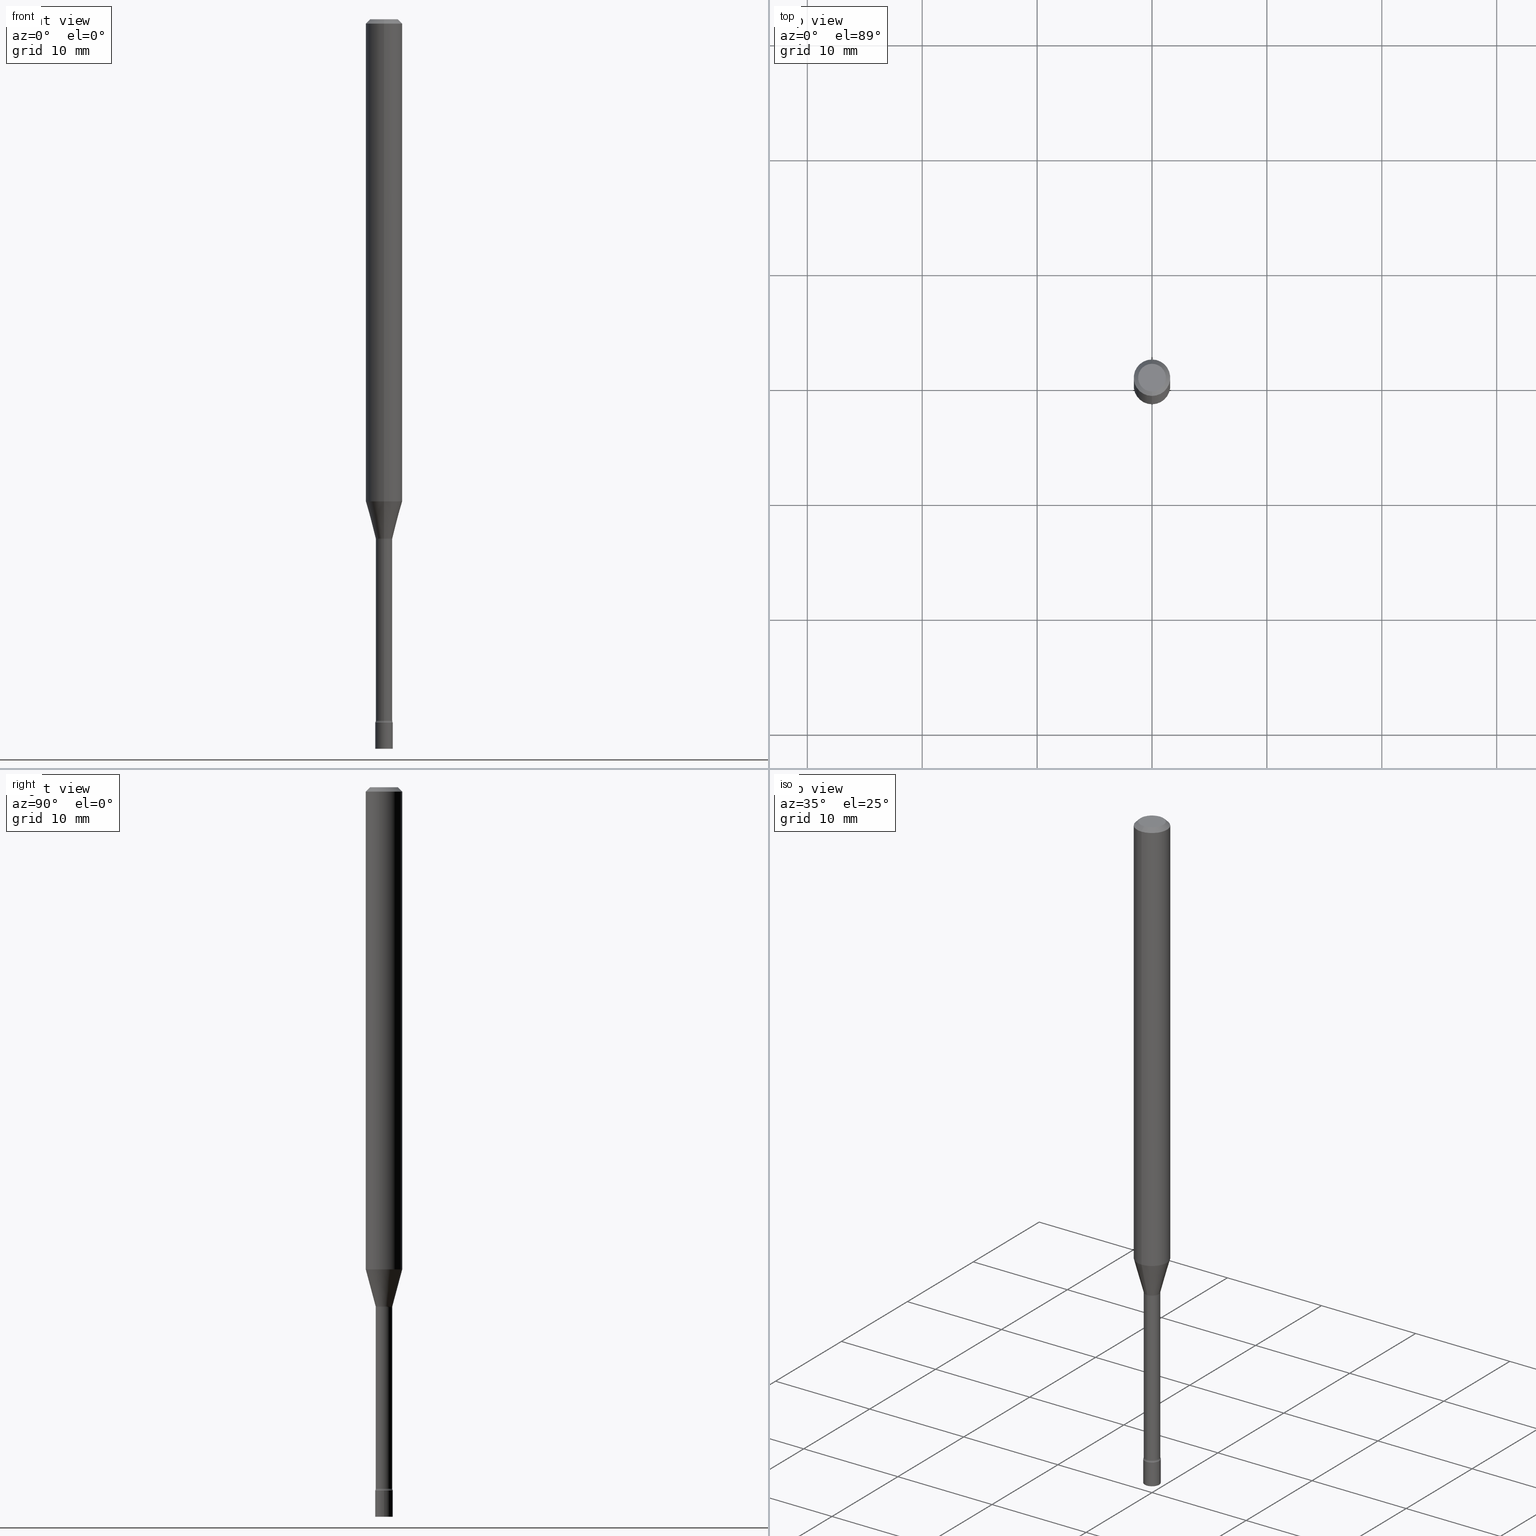
[diagram: canonical four-view strip — front | top / right | iso, engineering-drawing reading convention]
A machine part, canonical four-view strip (front | top / right | iso — engineering-drawing reading convention). The complete STEP part file that produces these views, byte-faithful:
ISO-10303-21;
HEADER;
FILE_DESCRIPTION (( 'STEP AP203' ),
    '1' );
FILE_NAME ('03601.STEP',
    '2024-03-08T22:02:42',
    ( '' ),
    ( '' ),
    'SwSTEP 2.0',
    'SolidWorks 2023',
    '' );
FILE_SCHEMA (( 'CONFIG_CONTROL_DESIGN' ));
ENDSEC;

DATA;
#1 = ORIENTED_EDGE ( 'NONE', *, *, #52, .T. ) ;
#2 = DIRECTION ( 'NONE',  ( 4.937700262164548042E-15, 0.7071067811865451302, -0.7071067811865499042 ) ) ;
#3 = DIRECTION ( 'NONE',  ( -2.445514255903286790E-29, 3.491416252259917408E-15, 1.000000000000000000 ) ) ;
#4 = ORIENTED_EDGE ( 'NONE', *, *, #431, .F. ) ;
#5 = DIRECTION ( 'NONE',  ( -2.445514255903286790E-29, 3.491416252259917408E-15, 1.000000000000000000 ) ) ;
#6 = EDGE_CURVE ( 'NONE', #175, #157, #355, .T. ) ;
#7 = ADVANCED_FACE ( 'NONE', ( #228 ), #27, .F. ) ;
#8 = AXIS2_PLACEMENT_3D ( 'NONE', #473, #239, #111 ) ;
#9 = CIRCLE ( 'NONE', #181, 0.01500000000000002720 ) ;
#10 = DIRECTION ( 'NONE',  ( -2.438088387897960049E-29, 3.491481338843145188E-15, 1.000000000000000000 ) ) ;
#11 = EDGE_LOOP ( 'NONE', ( #415, #82, #258, #126 ) ) ;
#12 = EDGE_LOOP ( 'NONE', ( #459, #340, #84, #229 ) ) ;
#13 = DIRECTION ( 'NONE',  ( -6.982962677686265922E-15, -1.000000000000000000, 4.370956789862821150E-15 ) ) ;
#14 = ORIENTED_EDGE ( 'NONE', *, *, #413, .F. ) ;
#15 = ADVANCED_FACE ( 'NONE', ( #306 ), #384, .T. ) ;
#16 = AXIS2_PLACEMENT_3D ( 'NONE', #234, #268, #307 ) ;
#17 = CIRCLE ( 'NONE', #421, 0.04749999999999999362 ) ;
#18 = DIRECTION ( 'NONE',  ( -2.445514255903286790E-29, 3.491416252259917408E-15, 1.000000000000000000 ) ) ;
#19 = DIRECTION ( 'NONE',  ( -2.445514255903286790E-29, 3.491416252259917408E-15, 1.000000000000000000 ) ) ;
#20 = ORIENTED_EDGE ( 'NONE', *, *, #431, .T. ) ;
#21 = ADVANCED_FACE ( 'NONE', ( #227 ), #276, .T. ) ;
#22 = FACE_OUTER_BOUND ( 'NONE', #465, .T. ) ;
#23 = ADVANCED_FACE ( 'NONE', ( #22 ), #508, .F. ) ;
#24 = DIRECTION ( 'NONE',  ( -6.982962677686265922E-15, -1.000000000000000000, 0.000000000000000000 ) ) ;
#25 = SHAPE_DEFINITION_REPRESENTATION ( #191, #349 ) ;
#26 = CARTESIAN_POINT ( 'NONE',  ( -0.02999999999999999889, -8.358423866131893065E-15, -2.410000000000000142 ) ) ;
#27 = TOROIDAL_SURFACE ( 'NONE', #85, 0.04320000000000000229, 0.01500000000000002720 ) ;
#28 = CIRCLE ( 'NONE', #100, 0.01499999999999990057 ) ;
#29 = CALENDAR_DATE ( 2024, 8, 3 ) ;
#30 = DIRECTION ( 'NONE',  ( 1.000000000000000000, -7.105427357601001070E-15, 4.926314711461324298E-29 ) ) ;
#31 = PERSON_AND_ORGANIZATION ( #252, #468 ) ;
#32 = CARTESIAN_POINT ( 'NONE',  ( 4.364351673553919652E-16, 0.06249999999999995143, -0.01500000000000024751 ) ) ;
#33 = CARTESIAN_POINT ( 'NONE',  ( 3.840629472727447874E-16, 0.04749999999999999362, -1.947592745229183872E-16 ) ) ;
#34 = EDGE_CURVE ( 'NONE', #435, #157, #502, .T. ) ;
#35 = ORIENTED_EDGE ( 'NONE', *, *, #189, .F. ) ;
#36 = COORDINATED_UNIVERSAL_TIME_OFFSET ( 5, 0, .BEHIND. ) ;
#37 = DIRECTION ( 'NONE',  ( 2.445514255903286790E-29, -3.491416252259917408E-15, -1.000000000000000000 ) ) ;
#38 = CIRCLE ( 'NONE', #466, 0.02820000000000016938 ) ;
#39 = AXIS2_PLACEMENT_3D ( 'NONE', #478, #443, #160 ) ;
#40 = CC_DESIGN_APPROVAL ( #248, ( #209 ) ) ;
#41 = FACE_OUTER_BOUND ( 'NONE', #128, .T. ) ;
#42 = ORIENTED_EDGE ( 'NONE', *, *, #230, .T. ) ;
#43 = CARTESIAN_POINT ( 'NONE',  ( 2.131628207280886208E-16, 0.02999999999999153691, -2.410000000000000142 ) ) ;
#44 = CARTESIAN_POINT ( 'NONE',  ( 0.000000000000000000, 0.000000000000000000, 0.000000000000000000 ) ) ;
#45 = ORIENTED_EDGE ( 'NONE', *, *, #274, .T. ) ;
#46 = CARTESIAN_POINT ( 'NONE',  ( 7.071694195096125605E-46, -1.009612926367956313E-31, -2.891700254057235572E-17 ) ) ;
#47 = ORIENTED_EDGE ( 'NONE', *, *, #204, .T. ) ;
#48 = CIRCLE ( 'NONE', #192, 0.06250000000000000000 ) ;
#49 = AXIS2_PLACEMENT_3D ( 'NONE', #50, #221, #125 ) ;
#50 = CARTESIAN_POINT ( 'NONE',  ( -3.016639876759883864E-16, -0.04320000000000846080, -2.402875394747777893 ) ) ;
#51 = ORIENTED_EDGE ( 'NONE', *, *, #297, .T. ) ;
#52 = EDGE_CURVE ( 'NONE', #414, #261, #185, .T. ) ;
#53 = VERTEX_POINT ( 'NONE', #140 ) ;
#54 = DIRECTION ( 'NONE',  ( -6.982962677686265922E-15, -1.000000000000000000, 4.370956789862821150E-15 ) ) ;
#55 = ORIENTED_EDGE ( 'NONE', *, *, #351, .F. ) ;
#56 = AXIS2_PLACEMENT_3D ( 'NONE', #310, #183, #24 ) ;
#57 = PRODUCT_DEFINITION ( 'UNKNOWN', '', #426, #464 ) ;
#58 = CARTESIAN_POINT ( 'NONE',  ( 5.893689356726921204E-29, -8.414313167946401273E-15, -2.410000000000000142 ) ) ;
#59 = EDGE_CURVE ( 'NONE', #414, #378, #188, .T. ) ;
#60 = VERTEX_POINT ( 'NONE', #427 ) ;
#61 = DIRECTION ( 'NONE',  ( -6.982962677686265922E-15, -1.000000000000000000, 3.491416252259917408E-15 ) ) ;
#62 = CC_DESIGN_DATE_AND_TIME_ASSIGNMENT ( #245, #148, ( #57 ) ) ;
#63 = VECTOR ( 'NONE', #457, 39.37007874015748143 ) ;
#64 = CARTESIAN_POINT ( 'NONE',  ( -0.02999999999999999889, 2.131628207280300479E-16, -1.475680527076471707E-30 ) ) ;
#65 = DIRECTION ( 'NONE',  ( 1.000000000000000000, -6.982962677686268288E-15, 0.000000000000000000 ) ) ;
#66 = CALENDAR_DATE ( 2024, 8, 3 ) ;
#67 = CARTESIAN_POINT ( 'NONE',  ( -2.004886277601557316E-16, -0.02871111260567018111, -1.778092501787273294 ) ) ;
#68 = LINE ( 'NONE', #254, #314 ) ;
#69 = CC_DESIGN_PERSON_AND_ORGANIZATION_ASSIGNMENT ( #197, #360, ( #426 ) ) ;
#70 = DIRECTION ( 'NONE',  ( -6.982962677686265922E-15, -1.000000000000000000, 0.000000000000000000 ) ) ;
#71 = DIRECTION ( 'NONE',  ( 6.982962677686265922E-15, 1.000000000000000000, -3.491416252259917408E-15 ) ) ;
#72 = CARTESIAN_POINT ( 'NONE',  ( 4.348350561435517217E-29, -6.208061058761581417E-15, -1.778092501787273294 ) ) ;
#73 = ADVANCED_FACE ( 'NONE', ( #380 ), #425, .T. ) ;
#74 = CARTESIAN_POINT ( 'NONE',  ( -2.094888803305286593E-16, -0.03000000000000836373, -2.410000000000000142 ) ) ;
#75 = CARTESIAN_POINT ( 'NONE',  ( 3.069544618484067825E-16, 0.04319999999999377810, -1.781974787463811438 ) ) ;
#76 = ORIENTED_EDGE ( 'NONE', *, *, #309, .F. ) ;
#77 = ORIENTED_EDGE ( 'NONE', *, *, #159, .F. ) ;
#78 = DIRECTION ( 'NONE',  ( -6.982962677686265922E-15, -1.000000000000000000, 3.483106191921935554E-15 ) ) ;
#79 = AXIS2_PLACEMENT_3D ( 'NONE', #90, #142, #424 ) ;
#80 = DIRECTION ( 'NONE',  ( -2.445514255903286790E-29, 3.491416252259917408E-15, 1.000000000000000000 ) ) ;
#81 = CYLINDRICAL_SURFACE ( 'NONE', #436, 0.02820000000000007917 ) ;
#82 = ORIENTED_EDGE ( 'NONE', *, *, #195, .F. ) ;
#83 = FACE_OUTER_BOUND ( 'NONE', #343, .T. ) ;
#84 = ORIENTED_EDGE ( 'NONE', *, *, #159, .T. ) ;
#85 = AXIS2_PLACEMENT_3D ( 'NONE', #235, #182, #187 ) ;
#86 = AXIS2_PLACEMENT_3D ( 'NONE', #403, #441, #283 ) ;
#87 = CARTESIAN_POINT ( 'NONE',  ( 4.357844746402980234E-29, -6.221615734068562240E-15, -1.781974787463811216 ) ) ;
#88 = ORIENTED_EDGE ( 'NONE', *, *, #184, .F. ) ;
#89 = ORIENTED_EDGE ( 'NONE', *, *, #34, .T. ) ;
#90 = CARTESIAN_POINT ( 'NONE',  ( 0.000000000000000000, 0.000000000000000000, 0.000000000000000000 ) ) ;
#91 = AXIS2_PLACEMENT_3D ( 'NONE', #251, #315, #396 ) ;
#92 = CIRCLE ( 'NONE', #219, 0.02871111260566397427 ) ;
#93 = ORIENTED_EDGE ( 'NONE', *, *, #280, .F. ) ;
#94 = ORIENTED_EDGE ( 'NONE', *, *, #231, .T. ) ;
#95 = DIRECTION ( 'NONE',  ( -2.445468806185136597E-29, 3.491481338843145583E-15, 1.000000000000000000 ) ) ;
#96 = EDGE_CURVE ( 'NONE', #290, #60, #38, .T. ) ;
#97 = AXIS2_PLACEMENT_3D ( 'NONE', #166, #80, #54 ) ;
#98 = AXIS2_PLACEMENT_3D ( 'NONE', #317, #241, #483 ) ;
#99 = ORIENTED_EDGE ( 'NONE', *, *, #151, .T. ) ;
#100 = AXIS2_PLACEMENT_3D ( 'NONE', #299, #216, #257 ) ;
#101 = COORDINATED_UNIVERSAL_TIME_OFFSET ( 5, 0, .BEHIND. ) ;
#102 = CARTESIAN_POINT ( 'NONE',  ( -4.364351673553513882E-16, -0.06250000000000580092, -1.651990657300387744 ) ) ;
#103 = PERSON_AND_ORGANIZATION ( #252, #468 ) ;
#104 = DIRECTION ( 'NONE',  ( -2.445514255903286790E-29, 3.491416252259917408E-15, 1.000000000000000000 ) ) ;
#105 = DIRECTION ( 'NONE',  ( -2.445514255903287071E-29, 3.491416252259917408E-15, 1.000000000000000000 ) ) ;
#106 = DATE_AND_TIME ( #325, #446 ) ;
#107 =( NAMED_UNIT ( * ) PLANE_ANGLE_UNIT ( ) SI_UNIT ( $, .RADIAN. ) );
#108 = EDGE_CURVE ( 'NONE', #493, #512, #375, .T. ) ;
#109 = EDGE_CURVE ( 'NONE', #53, #173, #422, .T. ) ;
#110 = PERSON_AND_ORGANIZATION_ROLE ( 'design_owner' ) ;
#111 = DIRECTION ( 'NONE',  ( 1.000000000000000000, -6.982962677686268288E-15, 0.000000000000000000 ) ) ;
#112 = CIRCLE ( 'NONE', #342, 0.02999999999999999889 ) ;
#113 = LOCAL_TIME ( 17, 2, 42.00000000000000000, #285 ) ;
#114 = ORIENTED_EDGE ( 'NONE', *, *, #503, .F. ) ;
#115 = SECURITY_CLASSIFICATION_LEVEL ( 'unclassified' ) ;
#116 = CARTESIAN_POINT ( 'NONE',  ( 0.02999999999999999889, -8.623958906942569995E-15, -2.410000000000000142 ) ) ;
#117 = ORIENTED_EDGE ( 'NONE', *, *, #189, .T. ) ;
#118 = APPROVAL_DATE_TIME ( #440, #485 ) ;
#119 = PLANE ( 'NONE',  #334 ) ;
#120 = LINE ( 'NONE', #67, #242 ) ;
#121 = DIRECTION ( 'NONE',  ( -6.982962677686265922E-15, -1.000000000000000000, 0.000000000000000000 ) ) ;
#122 = CARTESIAN_POINT ( 'NONE',  ( 4.039966703047140038E-29, -5.767787029480118116E-15, -1.651990657300387966 ) ) ;
#123 = VECTOR ( 'NONE', #2, 39.37007874015748143 ) ;
#124 = ORIENTED_EDGE ( 'NONE', *, *, #274, .F. ) ;
#125 = DIRECTION ( 'NONE',  ( -6.982962677686265922E-15, -1.000000000000000000, 0.000000000000000000 ) ) ;
#126 = ORIENTED_EDGE ( 'NONE', *, *, #330, .T. ) ;
#127 = CARTESIAN_POINT ( 'NONE',  ( 3.668271383854937122E-31, -5.237124378389886195E-17, -0.01500000000000003067 ) ) ;
#128 = EDGE_LOOP ( 'NONE', ( #499, #267, #99, #114 ) ) ;
#129 = PLANE ( 'NONE',  #288 ) ;
#130 = EDGE_LOOP ( 'NONE', ( #331, #373 ) ) ;
#131 = EDGE_LOOP ( 'NONE', ( #498, #266, #94, #93 ) ) ;
#132 = AXIS2_PLACEMENT_3D ( 'NONE', #350, #134, #352 ) ;
#133 = APPROVAL_PERSON_ORGANIZATION ( #388, #485, #240 ) ;
#134 = DIRECTION ( 'NONE',  ( -2.445468806185136597E-29, 3.491481338843145583E-15, 1.000000000000000000 ) ) ;
#135 = EDGE_CURVE ( 'NONE', #179, #311, #419, .T. ) ;
#136 = ADVANCED_FACE ( 'NONE', ( #469 ), #369, .F. ) ;
#137 = CARTESIAN_POINT ( 'NONE',  ( 5.876156823005488124E-29, -8.389594600327224115E-15, -2.402875394747777893 ) ) ;
#138 = PRODUCT ( '03601', '03601', '', ( #211 ) ) ;
#139 = AXIS2_PLACEMENT_3D ( 'NONE', #127, #492, #178 ) ;
#140 = CARTESIAN_POINT ( 'NONE',  ( 3.240469674127971596E-16, 0.02871111260565776743, -1.778092501787273294 ) ) ;
#141 = ORIENTED_EDGE ( 'NONE', *, *, #177, .T. ) ;
#142 = DIRECTION ( 'NONE',  ( -2.445514255903286790E-29, 3.491416252259917408E-15, 1.000000000000000000 ) ) ;
#143 = AXIS2_PLACEMENT_3D ( 'NONE', #423, #95, #65 ) ;
#144 = LOCAL_TIME ( 17, 2, 42.00000000000000000, #101 ) ;
#145 = CYLINDRICAL_SURFACE ( 'NONE', #170, 0.02820000000000007917 ) ;
#146 = CC_DESIGN_PERSON_AND_ORGANIZATION_ASSIGNMENT ( #205, #357, ( #426 ) ) ;
#147 = MANIFOLD_SOLID_BREP ( 'Body-Move/Copy2[1]', #308 ) ;
#148 = DATE_TIME_ROLE ( 'creation_date' ) ;
#149 = CARTESIAN_POINT ( 'NONE',  ( 4.357763756151139053E-29, -6.221731716718877342E-15, -1.781974787463811216 ) ) ;
#150 = CARTESIAN_POINT ( 'NONE',  ( 2.040047249754912493E-16, 0.02871111260565776743, -1.778092501787273294 ) ) ;
#151 = EDGE_CURVE ( 'NONE', #378, #222, #48, .T. ) ;
#152 = EDGE_CURVE ( 'NONE', #512, #493, #487, .T. ) ;
#153 = EDGE_LOOP ( 'NONE', ( #223, #47, #20, #376 ) ) ;
#154 = APPROVAL_STATUS ( 'not_yet_approved' ) ;
#155 = DIRECTION ( 'NONE',  ( -6.982962677686266711E-15, -1.000000000000000000, 3.491416252259917408E-15 ) ) ;
#156 = DIRECTION ( 'NONE',  ( -2.445514255903286790E-29, 3.491416252259917408E-15, 1.000000000000000000 ) ) ;
#157 = VERTEX_POINT ( 'NONE', #26 ) ;
#158 = COORDINATED_UNIVERSAL_TIME_OFFSET ( 5, 0, .BEHIND. ) ;
#159 = EDGE_CURVE ( 'NONE', #60, #311, #324, .T. ) ;
#160 = DIRECTION ( 'NONE',  ( -6.982962677686265922E-15, -1.000000000000000000, 3.491416252259917408E-15 ) ) ;
#161 = CIRCLE ( 'NONE', #97, 0.06250000000000000000 ) ;
#162 = PERSON_AND_ORGANIZATION_ROLE ( 'classification_officer' ) ;
#163 = DIRECTION ( 'NONE',  ( -6.982962677686265922E-15, -1.000000000000000000, 0.000000000000000000 ) ) ;
#164 = DIRECTION ( 'NONE',  ( -2.445514255903286790E-29, 3.491416252259917408E-15, 1.000000000000000000 ) ) ;
#165 = EDGE_LOOP ( 'NONE', ( #167, #448, #339, #77 ) ) ;
#166 = CARTESIAN_POINT ( 'NONE',  ( 4.039966703047140038E-29, -5.767787029480118116E-15, -1.651990657300387966 ) ) ;
#167 = ORIENTED_EDGE ( 'NONE', *, *, #413, .T. ) ;
#168 = CYLINDRICAL_SURFACE ( 'NONE', #401, 0.06250000000000000000 ) ;
#169 = ORIENTED_EDGE ( 'NONE', *, *, #379, .F. ) ;
#170 = AXIS2_PLACEMENT_3D ( 'NONE', #289, #438, #393 ) ;
#171 = APPROVAL ( #154, 'UNSPECIFIED' ) ;
#172 = AXIS2_PLACEMENT_3D ( 'NONE', #87, #260, #489 ) ;
#173 = VERTEX_POINT ( 'NONE', #194 ) ;
#174 = FACE_OUTER_BOUND ( 'NONE', #130, .T. ) ;
#175 = VERTEX_POINT ( 'NONE', #116 ) ;
#176 = ORIENTED_EDGE ( 'NONE', *, *, #280, .T. ) ;
#177 = EDGE_CURVE ( 'NONE', #305, #435, #112, .T. ) ;
#178 = DIRECTION ( 'NONE',  ( 6.982962677686265922E-15, 1.000000000000000000, -3.483106191921935554E-15 ) ) ;
#179 = VERTEX_POINT ( 'NONE', #470 ) ;
#180 = AXIS2_PLACEMENT_3D ( 'NONE', #58, #18, #346 ) ;
#181 = AXIS2_PLACEMENT_3D ( 'NONE', #363, #511, #437 ) ;
#182 = DIRECTION ( 'NONE',  ( -2.445514255903286790E-29, 3.491416252259917408E-15, 1.000000000000000000 ) ) ;
#183 = DIRECTION ( 'NONE',  ( -2.445514255903286790E-29, 3.491416252259917408E-15, 1.000000000000000000 ) ) ;
#184 = EDGE_CURVE ( 'NONE', #222, #378, #332, .T. ) ;
#185 = CIRCLE ( 'NONE', #16, 0.04749999999999999362 ) ;
#186 = AXIS2_PLACEMENT_3D ( 'NONE', #445, #250, #163 ) ;
#187 = DIRECTION ( 'NONE',  ( -6.982962677686266711E-15, -1.000000000000000000, 3.491416252259917408E-15 ) ) ;
#188 = LINE ( 'NONE', #385, #444 ) ;
#189 = EDGE_CURVE ( 'NONE', #173, #222, #244, .T. ) ;
#190 = CARTESIAN_POINT ( 'NONE',  ( 3.668271383854937122E-31, -5.237124378389886195E-17, -0.01500000000000003067 ) ) ;
#191 = PRODUCT_DEFINITION_SHAPE ( 'NONE', 'NONE',  #57 ) ;
#192 = AXIS2_PLACEMENT_3D ( 'NONE', #247, #282, #78 ) ;
#193 = TOROIDAL_SURFACE ( 'NONE', #243, 0.04320000000000000229, 0.01500000000000002720 ) ;
#194 = CARTESIAN_POINT ( 'NONE',  ( 4.440892098501027495E-16, 0.06249999999999419215, -1.651990657300388188 ) ) ;
#195 = EDGE_CURVE ( 'NONE', #215, #53, #409, .T. ) ;
#196 = ORIENTED_EDGE ( 'NONE', *, *, #151, .F. ) ;
#197 = PERSON_AND_ORGANIZATION ( #252, #468 ) ;
#198 = FACE_OUTER_BOUND ( 'NONE', #463, .T. ) ;
#199 = CARTESIAN_POINT ( 'NONE',  ( 5.893689356726921204E-29, -8.414313167946401273E-15, -2.410000000000000142 ) ) ;
#200 = UNCERTAINTY_MEASURE_WITH_UNIT (LENGTH_MEASURE( 1.000000000000000082E-05 ), #292, 'distance_accuracy_value', 'NONE');
#201 = PRODUCT_RELATED_PRODUCT_CATEGORY ( 'detail', '', ( #138 ) ) ;
#202 = APPROVAL_ROLE ( '' ) ;
#203 = DIRECTION ( 'NONE',  ( -2.445514255903287071E-29, 3.491416252259917408E-15, 1.000000000000000000 ) ) ;
#204 = EDGE_CURVE ( 'NONE', #435, #305, #456, .T. ) ;
#205 = PERSON_AND_ORGANIZATION ( #252, #468 ) ;
#206 = DIRECTION ( 'NONE',  ( -2.445514255903286790E-29, 3.491416252259917408E-15, 1.000000000000000000 ) ) ;
#207 = DIRECTION ( 'NONE',  ( -6.982962677686265133E-15, -1.000000000000000000, 0.000000000000000000 ) ) ;
#208 = AXIS2_PLACEMENT_3D ( 'NONE', #44, #333, #447 ) ;
#209 = SECURITY_CLASSIFICATION ( '', '', #115 ) ;
#210 = DIMENSIONAL_EXPONENTS ( 1.000000000000000000, 0.000000000000000000, 0.000000000000000000, 0.000000000000000000, 0.000000000000000000, 0.000000000000000000, 0.000000000000000000 ) ;
#211 = MECHANICAL_CONTEXT ( 'NONE', #347, 'mechanical' ) ;
#212 = FACE_OUTER_BOUND ( 'NONE', #12, .T. ) ;
#213 = LINE ( 'NONE', #32, #123 ) ;
#214 = CARTESIAN_POINT ( 'NONE',  ( -1.969195475107090191E-16, -0.02820000000000621315, -1.781974787463811216 ) ) ;
#215 = VERTEX_POINT ( 'NONE', #390 ) ;
#216 = DIRECTION ( 'NONE',  ( 1.000000000000000000, -7.105427357601001070E-15, 4.926314711461324298E-29 ) ) ;
#217 = EDGE_CURVE ( 'NONE', #290, #179, #402, .T. ) ;
#218 = VECTOR ( 'NONE', #105, 39.37007874015748143 ) ;
#219 = AXIS2_PLACEMENT_3D ( 'NONE', #361, #472, #392 ) ;
#220 = ORIENTED_EDGE ( 'NONE', *, *, #96, .F. ) ;
#221 = DIRECTION ( 'NONE',  ( -1.000000000000000000, 6.982962677686265922E-15, -4.883557194083112901E-29 ) ) ;
#222 = VERTEX_POINT ( 'NONE', #442 ) ;
#223 = ORIENTED_EDGE ( 'NONE', *, *, #34, .F. ) ;
#224 = CARTESIAN_POINT ( 'NONE',  ( -4.364351673553916201E-16, -0.06250000000000000000, 2.182135157662448380E-16 ) ) ;
#225 = ORIENTED_EDGE ( 'NONE', *, *, #177, .F. ) ;
#226 = ORIENTED_EDGE ( 'NONE', *, *, #503, .T. ) ;
#227 = FACE_OUTER_BOUND ( 'NONE', #500, .T. ) ;
#228 = FACE_OUTER_BOUND ( 'NONE', #11, .T. ) ;
#229 = ORIENTED_EDGE ( 'NONE', *, *, #135, .F. ) ;
#230 = EDGE_CURVE ( 'NONE', #53, #179, #474, .T. ) ;
#231 = EDGE_CURVE ( 'NONE', #215, #253, #120, .T. ) ;
#232 = AXIS2_PLACEMENT_3D ( 'NONE', #429, #356, #432 ) ;
#233 = CC_DESIGN_APPROVAL ( #171, ( #57 ) ) ;
#234 = CARTESIAN_POINT ( 'NONE',  ( 7.071694195096125605E-46, -1.009612926367956313E-31, -2.891700254057235572E-17 ) ) ;
#235 = CARTESIAN_POINT ( 'NONE',  ( 4.357763756151139053E-29, -6.221731716718877342E-15, -1.781974787463811216 ) ) ;
#236 = APPROVAL_DATE_TIME ( #106, #248 ) ;
#237 = ADVANCED_FACE ( 'NONE', ( #293 ), #323, .T. ) ;
#238 = EDGE_CURVE ( 'NONE', #157, #175, #255, .T. ) ;
#239 = DIRECTION ( 'NONE',  ( -2.445468806185136597E-29, 3.491481338843145583E-15, 1.000000000000000000 ) ) ;
#240 = APPROVAL_ROLE ( '' ) ;
#241 = DIRECTION ( 'NONE',  ( 0.000000000000000000, 0.000000000000000000, 1.000000000000000000 ) ) ;
#242 = VECTOR ( 'NONE', #386, 39.37007874015748854 ) ;
#243 = AXIS2_PLACEMENT_3D ( 'NONE', #149, #104, #155 ) ;
#244 = LINE ( 'NONE', #256, #218 ) ;
#245 = DATE_AND_TIME ( #510, #475 ) ;
#246 = DIRECTION ( 'NONE',  ( -2.445468806185136877E-29, 3.491481338843145188E-15, 1.000000000000000000 ) ) ;
#247 = CARTESIAN_POINT ( 'NONE',  ( 3.668271383854937122E-31, -5.237124378389886195E-17, -0.01500000000000003067 ) ) ;
#248 = APPROVAL ( #316, 'UNSPECIFIED' ) ;
#249 = APPLICATION_PROTOCOL_DEFINITION ( 'international standard', 'config_control_design', 1994, #364 ) ;
#250 = DIRECTION ( 'NONE',  ( -2.445514255903286790E-29, 3.491416252259917408E-15, 1.000000000000000000 ) ) ;
#251 = CARTESIAN_POINT ( 'NONE',  ( 3.668271383854937122E-31, -5.237124378389886195E-17, -0.01500000000000003067 ) ) ;
#252 = PERSON ( 'UNSPECIFIED', 'UNSPECIFIED', 'UNSPECIFIED', ('UNSPECIFIED'), ('UNSPECIFIED'), ('UNSPECIFIED') ) ;
#253 = VERTEX_POINT ( 'NONE', #102 ) ;
#254 = CARTESIAN_POINT ( 'NONE',  ( 0.02999999999999999889, -2.094888803305880210E-16, 1.462853032738780878E-30 ) ) ;
#255 = CIRCLE ( 'NONE', #8, 0.02999999999999999889 ) ;
#256 = CARTESIAN_POINT ( 'NONE',  ( 4.440892098500625669E-16, 0.06250000000000000000, -2.182135157662448380E-16 ) ) ;
#257 = DIRECTION ( 'NONE',  ( 7.105427357601001859E-15, 1.000000000000000000, 0.000000000000000000 ) ) ;
#258 = ORIENTED_EDGE ( 'NONE', *, *, #454, .T. ) ;
#259 = ADVANCED_FACE ( 'NONE', ( #354 ), #145, .T. ) ;
#260 = DIRECTION ( 'NONE',  ( -2.445514255903286790E-29, 3.491416252259917408E-15, 1.000000000000000000 ) ) ;
#261 = VERTEX_POINT ( 'NONE', #33 ) ;
#262 = CARTESIAN_POINT ( 'NONE',  ( 0.000000000000000000, 0.000000000000000000, 0.000000000000000000 ) ) ;
#263 = AXIS2_PLACEMENT_3D ( 'NONE', #75, #30, #320 ) ;
#264 = APPROVAL_PERSON_ORGANIZATION ( #103, #248, #202 ) ;
#265 = DIRECTION ( 'NONE',  ( 1.000000000000000000, -6.982962677686265922E-15, 4.876176775795935793E-29 ) ) ;
#266 = ORIENTED_EDGE ( 'NONE', *, *, #490, .T. ) ;
#267 = ORIENTED_EDGE ( 'NONE', *, *, #59, .T. ) ;
#268 = DIRECTION ( 'NONE',  ( -2.445514255903286790E-29, 3.491416252259917408E-15, 1.000000000000000000 ) ) ;
#269 = AXIS2_PLACEMENT_3D ( 'NONE', #199, #365, #70 ) ;
#270 = CONICAL_SURFACE ( 'NONE', #139, 0.06250000000000000000, 0.7853981633974483900 ) ;
#271 = CC_DESIGN_PERSON_AND_ORGANIZATION_ASSIGNMENT ( #31, #281, ( #57 ) ) ;
#272 = EDGE_LOOP ( 'NONE', ( #381, #408 ) ) ;
#273 = ADVANCED_FACE ( 'NONE', ( #362 ), #298, .T. ) ;
#274 = EDGE_CURVE ( 'NONE', #253, #173, #161, .T. ) ;
#275 = ORIENTED_EDGE ( 'NONE', *, *, #297, .F. ) ;
#276 = CYLINDRICAL_SURFACE ( 'NONE', #79, 0.06250000000000000000 ) ;
#277 = VECTOR ( 'NONE', #284, 39.37007874015748143 ) ;
#278 = CIRCLE ( 'NONE', #49, 0.01499999999999990057 ) ;
#279 = ORIENTED_EDGE ( 'NONE', *, *, #59, .F. ) ;
#280 = EDGE_CURVE ( 'NONE', #173, #253, #518, .T. ) ;
#281 = PERSON_AND_ORGANIZATION_ROLE ( 'creator' ) ;
#282 = DIRECTION ( 'NONE',  ( -2.445514255903286790E-29, 3.491416252259917408E-15, 1.000000000000000000 ) ) ;
#283 = DIRECTION ( 'NONE',  ( -6.982962677686265922E-15, -1.000000000000000000, 3.491416252259917408E-15 ) ) ;
#284 = DIRECTION ( 'NONE',  ( -2.445514255903287071E-29, 3.491416252259917408E-15, 1.000000000000000000 ) ) ;
#285 = COORDINATED_UNIVERSAL_TIME_OFFSET ( 5, 0, .BEHIND. ) ;
#286 = DIRECTION ( 'NONE',  ( 2.445514255903286230E-29, -3.491416252259917408E-15, -1.000000000000000000 ) ) ;
#287 = VECTOR ( 'NONE', #461, 39.37007874015748143 ) ;
#288 = AXIS2_PLACEMENT_3D ( 'NONE', #416, #329, #484 ) ;
#289 = CARTESIAN_POINT ( 'NONE',  ( 0.000000000000000000, 0.000000000000000000, 0.000000000000000000 ) ) ;
#290 = VERTEX_POINT ( 'NONE', #337 ) ;
#291 = CARTESIAN_POINT ( 'NONE',  ( 2.003730514843487903E-16, 0.02820000000000007917, -9.845793831372994551E-17 ) ) ;
#292 =( CONVERSION_BASED_UNIT ( 'INCH', #477 ) LENGTH_UNIT ( ) NAMED_UNIT ( #210 ) );
#293 = FACE_OUTER_BOUND ( 'NONE', #405, .T. ) ;
#294 =( LENGTH_UNIT ( ) NAMED_UNIT ( * ) SI_UNIT ( $, .METRE. ) );
#295 = FACE_OUTER_BOUND ( 'NONE', #439, .T. ) ;
#296 =( GEOMETRIC_REPRESENTATION_CONTEXT ( 3 ) GLOBAL_UNCERTAINTY_ASSIGNED_CONTEXT ( ( #200 ) ) GLOBAL_UNIT_ASSIGNED_CONTEXT ( ( #292, #107, #430 ) ) REPRESENTATION_CONTEXT ( 'NONE', 'WORKASPACE' ) );
#297 = EDGE_CURVE ( 'NONE', #253, #378, #455, .T. ) ;
#298 = CYLINDRICAL_SURFACE ( 'NONE', #208, 0.02999999999999999889 ) ;
#299 = CARTESIAN_POINT ( 'NONE',  ( 3.069544618484224611E-16, 0.04319999999999167561, -2.402875394747778337 ) ) ;
#300 = PERSON_AND_ORGANIZATION ( #252, #468 ) ;
#301 = CARTESIAN_POINT ( 'NONE',  ( 0.02999999999999999889, -8.938192227438451682E-15, -2.500000000000000000 ) ) ;
#302 = ADVANCED_FACE ( 'NONE', ( #41 ), #270, .T. ) ;
#303 = ORIENTED_EDGE ( 'NONE', *, *, #184, .T. ) ;
#304 = AXIS2_PLACEMENT_3D ( 'NONE', #122, #3, #13 ) ;
#305 = VERTEX_POINT ( 'NONE', #301 ) ;
#306 = FACE_OUTER_BOUND ( 'NONE', #368, .T. ) ;
#307 = DIRECTION ( 'NONE',  ( -6.982962677686266711E-15, -1.000000000000000000, 3.491416252259917408E-15 ) ) ;
#308 = CLOSED_SHELL ( 'NONE', ( #15, #348, #273, #389 ) ) ;
#309 = EDGE_CURVE ( 'NONE', #290, #493, #28, .T. ) ;
#310 = CARTESIAN_POINT ( 'NONE',  ( 4.348350561435517217E-29, -6.208061058761581417E-15, -1.778092501787273294 ) ) ;
#311 = VERTEX_POINT ( 'NONE', #214 ) ;
#312 = DIRECTION ( 'NONE',  ( -4.851104656540964275E-15, -0.7071067811865500152, -0.7071067811865450192 ) ) ;
#313 = AXIS2_PLACEMENT_3D ( 'NONE', #137, #19, #61 ) ;
#314 = VECTOR ( 'NONE', #246, 39.37007874015748143 ) ;
#315 = DIRECTION ( 'NONE',  ( -2.445514255903286790E-29, 3.491416252259917408E-15, 1.000000000000000000 ) ) ;
#316 = APPROVAL_STATUS ( 'not_yet_approved' ) ;
#317 = CARTESIAN_POINT ( 'NONE',  ( 0.000000000000000000, 0.000000000000000000, 0.000000000000000000 ) ) ;
#318 = CARTESIAN_POINT ( 'NONE',  ( 4.357844746402980234E-29, -6.221615734068562240E-15, -1.781974787463811216 ) ) ;
#319 = CALENDAR_DATE ( 2024, 8, 3 ) ;
#320 = DIRECTION ( 'NONE',  ( 7.105427357601001859E-15, 1.000000000000000000, 0.000000000000000000 ) ) ;
#321 = COORDINATED_UNIVERSAL_TIME_OFFSET ( 5, 0, .BEHIND. ) ;
#322 = PLANE ( 'NONE',  #86 ) ;
#323 = CONICAL_SURFACE ( 'NONE', #382, 0.06250000000000000000, 0.7853981633974483900 ) ;
#324 = LINE ( 'NONE', #514, #277 ) ;
#325 = CALENDAR_DATE ( 2024, 8, 3 ) ;
#326 = CARTESIAN_POINT ( 'NONE',  ( -3.773273898774340269E-16, -0.04749999999999999362, 1.369252694417737251E-16 ) ) ;
#327 = CARTESIAN_POINT ( 'NONE',  ( 6.113672015462842613E-29, -8.728703347107864943E-15, -2.500000000000000000 ) ) ;
#328 = CARTESIAN_POINT ( 'NONE',  ( 5.876266033014929220E-29, -8.389438205377856911E-15, -2.402875394747777893 ) ) ;
#329 = DIRECTION ( 'NONE',  ( 2.438088387897960049E-29, -3.491481338843145188E-15, -1.000000000000000000 ) ) ;
#330 = EDGE_CURVE ( 'NONE', #311, #179, #371, .T. ) ;
#331 = ORIENTED_EDGE ( 'NONE', *, *, #6, .T. ) ;
#332 = CIRCLE ( 'NONE', #91, 0.06250000000000000000 ) ;
#333 = DIRECTION ( 'NONE',  ( -2.445468806185136597E-29, 3.491481338843145583E-15, 1.000000000000000000 ) ) ;
#334 = AXIS2_PLACEMENT_3D ( 'NONE', #358, #286, #71 ) ;
#335 = ORIENTED_EDGE ( 'NONE', *, *, #108, .T. ) ;
#336 = MANIFOLD_SOLID_BREP ( 'Body-Move/Copy2[2]', #501 ) ;
#337 = CARTESIAN_POINT ( 'NONE',  ( 2.067679361062483248E-16, 0.02819999999999178025, -2.402875394747777893 ) ) ;
#338 = DIRECTION ( 'NONE',  ( -6.982962677686265922E-15, -1.000000000000000000, 3.491416252259917408E-15 ) ) ;
#339 = ORIENTED_EDGE ( 'NONE', *, *, #330, .F. ) ;
#340 = ORIENTED_EDGE ( 'NONE', *, *, #96, .T. ) ;
#341 = VECTOR ( 'NONE', #517, 39.37007874015748854 ) ;
#342 = AXIS2_PLACEMENT_3D ( 'NONE', #327, #481, #520 ) ;
#343 = EDGE_LOOP ( 'NONE', ( #45, #117, #196, #275 ) ) ;
#344 = DIRECTION ( 'NONE',  ( -2.445514255903286790E-29, 3.491416252259917408E-15, 1.000000000000000000 ) ) ;
#345 = ADVANCED_FACE ( 'NONE', ( #83 ), #168, .T. ) ;
#346 = DIRECTION ( 'NONE',  ( -6.982962677686265922E-15, -1.000000000000000000, 0.000000000000000000 ) ) ;
#347 = APPLICATION_CONTEXT ( 'configuration controlled 3d designs of mechanical parts and assemblies' ) ;
#348 = ADVANCED_FACE ( 'NONE', ( #174 ), #410, .T. ) ;
#349 = ADVANCED_BREP_SHAPE_REPRESENTATION ( '03601', ( #147, #336, #98 ), #296 ) ;
#350 = CARTESIAN_POINT ( 'NONE',  ( 0.000000000000000000, 0.000000000000000000, 0.000000000000000000 ) ) ;
#351 = EDGE_CURVE ( 'NONE', #60, #512, #278, .T. ) ;
#352 = DIRECTION ( 'NONE',  ( 1.000000000000000000, -6.982962677686267499E-15, 4.876176775795936353E-29 ) ) ;
#353 = ORIENTED_EDGE ( 'NONE', *, *, #454, .F. ) ;
#354 = FACE_OUTER_BOUND ( 'NONE', #165, .T. ) ;
#355 = CIRCLE ( 'NONE', #143, 0.02999999999999999889 ) ;
#356 = DIRECTION ( 'NONE',  ( -2.445468806185136597E-29, 3.491481338843145583E-15, 1.000000000000000000 ) ) ;
#357 = PERSON_AND_ORGANIZATION_ROLE ( 'creator' ) ;
#358 = CARTESIAN_POINT ( 'NONE',  ( 3.316907271900976096E-16, 0.04749999999999999362, -1.803007732526322464E-16 ) ) ;
#359 = DIRECTION ( 'NONE',  ( -6.982962677686265922E-15, -1.000000000000000000, 0.000000000000000000 ) ) ;
#360 = PERSON_AND_ORGANIZATION_ROLE ( 'design_supplier' ) ;
#361 = CARTESIAN_POINT ( 'NONE',  ( 4.348350561435517217E-29, -6.208061058761581417E-15, -1.778092501787273294 ) ) ;
#362 = FACE_OUTER_BOUND ( 'NONE', #153, .T. ) ;
#363 = CARTESIAN_POINT ( 'NONE',  ( -3.016639876760031283E-16, -0.04320000000000622647, -1.781974787463810994 ) ) ;
#364 = APPLICATION_CONTEXT ( 'configuration controlled 3d designs of mechanical parts and assemblies' ) ;
#365 = DIRECTION ( 'NONE',  ( -2.445514255903286790E-29, 3.491416252259917408E-15, 1.000000000000000000 ) ) ;
#366 = DIRECTION ( 'NONE',  ( -2.445514255903286790E-29, 3.491416252259917408E-15, 1.000000000000000000 ) ) ;
#367 = CARTESIAN_POINT ( 'NONE',  ( 0.000000000000000000, 0.000000000000000000, 0.000000000000000000 ) ) ;
#368 = EDGE_LOOP ( 'NONE', ( #141, #89, #434, #4 ) ) ;
#369 = TOROIDAL_SURFACE ( 'NONE', #39, 0.04320000000000006474, 0.01499999999999990057 ) ;
#370 = DIRECTION ( 'NONE',  ( -2.445514255903286790E-29, 3.491416252259917408E-15, 1.000000000000000000 ) ) ;
#371 = CIRCLE ( 'NONE', #172, 0.02819999999999998896 ) ;
#372 = DIRECTION ( 'NONE',  ( -6.982962677686266711E-15, -1.000000000000000000, 3.491416252259917408E-15 ) ) ;
#373 = ORIENTED_EDGE ( 'NONE', *, *, #238, .T. ) ;
#374 = ADVANCED_FACE ( 'NONE', ( #212 ), #81, .T. ) ;
#375 = CIRCLE ( 'NONE', #180, 0.02999999999999999889 ) ;
#376 = ORIENTED_EDGE ( 'NONE', *, *, #238, .F. ) ;
#377 = LOCAL_TIME ( 17, 2, 42.00000000000000000, #36 ) ;
#378 = VERTEX_POINT ( 'NONE', #406 ) ;
#379 = EDGE_CURVE ( 'NONE', #261, #414, #17, .T. ) ;
#380 = FACE_OUTER_BOUND ( 'NONE', #131, .T. ) ;
#381 = ORIENTED_EDGE ( 'NONE', *, *, #152, .F. ) ;
#382 = AXIS2_PLACEMENT_3D ( 'NONE', #190, #37, #506 ) ;
#383 = AXIS2_PLACEMENT_3D ( 'NONE', #451, #10, #265 ) ;
#384 = CYLINDRICAL_SURFACE ( 'NONE', #132, 0.02999999999999999889 ) ;
#385 = CARTESIAN_POINT ( 'NONE',  ( -4.287811248607203282E-16, -0.06250000000000005551, -0.01499999999999981209 ) ) ;
#386 = DIRECTION ( 'NONE',  ( -1.807323732225328562E-15, -0.2588190451025179639, 0.9659258262890690894 ) ) ;
#387 = APPROVAL_PERSON_ORGANIZATION ( #515, #171, #479 ) ;
#388 = PERSON_AND_ORGANIZATION ( #252, #468 ) ;
#389 = ADVANCED_FACE ( 'NONE', ( #494 ), #129, .T. ) ;
#390 = CARTESIAN_POINT ( 'NONE',  ( -2.004886277601557316E-16, -0.02871111260567018111, -1.778092501787273294 ) ) ;
#391 = DATE_AND_TIME ( #66, #113 ) ;
#392 = DIRECTION ( 'NONE',  ( -6.982962677686265922E-15, -1.000000000000000000, 0.000000000000000000 ) ) ;
#393 = DIRECTION ( 'NONE',  ( -6.982962677686265922E-15, -1.000000000000000000, 3.491416252259917408E-15 ) ) ;
#394 = ORIENTED_EDGE ( 'NONE', *, *, #231, .F. ) ;
#395 = APPROVAL_DATE_TIME ( #391, #171 ) ;
#396 = DIRECTION ( 'NONE',  ( -6.982962677686265922E-15, -1.000000000000000000, 3.483106191921935554E-15 ) ) ;
#397 = ADVANCED_FACE ( 'NONE', ( #295 ), #193, .F. ) ;
#398 = AXIS2_PLACEMENT_3D ( 'NONE', #72, #164, #359 ) ;
#399 = APPLICATION_PROTOCOL_DEFINITION ( 'international standard', 'config_control_design', 1994, #347 ) ;
#400 = CONICAL_SURFACE ( 'NONE', #186, 0.02871111260566397427, 0.2617993877991500740 ) ;
#401 = AXIS2_PLACEMENT_3D ( 'NONE', #262, #370, #404 ) ;
#402 = LINE ( 'NONE', #291, #497 ) ;
#403 = CARTESIAN_POINT ( 'NONE',  ( 2.094888803306469144E-16, 0.02999999999999158548, -2.410000000000000142 ) ) ;
#404 = DIRECTION ( 'NONE',  ( -6.982962677686265922E-15, -1.000000000000000000, 3.491416252259917408E-15 ) ) ;
#405 = EDGE_LOOP ( 'NONE', ( #279, #169, #226, #303 ) ) ;
#406 = CARTESIAN_POINT ( 'NONE',  ( -4.364351673553912750E-16, -0.06250000000000005551, -0.01499999999999981209 ) ) ;
#407 = CC_DESIGN_DATE_AND_TIME_ASSIGNMENT ( #471, #428, ( #209 ) ) ;
#408 = ORIENTED_EDGE ( 'NONE', *, *, #108, .F. ) ;
#409 = CIRCLE ( 'NONE', #398, 0.02871111260566397427 ) ;
#410 = PLANE ( 'NONE',  #383 ) ;
#411 = CIRCLE ( 'NONE', #458, 0.02820000000000016938 ) ;
#412 = ADVANCED_FACE ( 'NONE', ( #516 ), #322, .F. ) ;
#413 = EDGE_CURVE ( 'NONE', #60, #290, #411, .T. ) ;
#414 = VERTEX_POINT ( 'NONE', #326 ) ;
#415 = ORIENTED_EDGE ( 'NONE', *, *, #230, .F. ) ;
#416 = CARTESIAN_POINT ( 'NONE',  ( 2.094888803306491331E-16, 0.02999999999999126976, -2.500000000000000000 ) ) ;
#417 = ORIENTED_EDGE ( 'NONE', *, *, #490, .F. ) ;
#418 = ORIENTED_EDGE ( 'NONE', *, *, #309, .T. ) ;
#419 = CIRCLE ( 'NONE', #433, 0.02819999999999998896 ) ;
#420 = DIRECTION ( 'NONE',  ( -6.982962677686265922E-15, -1.000000000000000000, 0.000000000000000000 ) ) ;
#421 = AXIS2_PLACEMENT_3D ( 'NONE', #46, #366, #372 ) ;
#422 = LINE ( 'NONE', #150, #341 ) ;
#423 = CARTESIAN_POINT ( 'NONE',  ( 5.893579822906179826E-29, -8.414470026611981678E-15, -2.410000000000000142 ) ) ;
#424 = DIRECTION ( 'NONE',  ( -6.982962677686265922E-15, -1.000000000000000000, 3.491416252259917408E-15 ) ) ;
#425 = CONICAL_SURFACE ( 'NONE', #56, 0.02871111260566397427, 0.2617993877991500740 ) ;
#426 = PRODUCT_DEFINITION_FORMATION_WITH_SPECIFIED_SOURCE ( 'ANY', '', #138, .NOT_KNOWN. ) ;
#427 = CARTESIAN_POINT ( 'NONE',  ( -1.969195475106951401E-16, -0.02820000000000855503, -2.402875394747777893 ) ) ;
#428 = DATE_TIME_ROLE ( 'classification_date' ) ;
#429 = CARTESIAN_POINT ( 'NONE',  ( 6.113672015462842613E-29, -8.728703347107864943E-15, -2.500000000000000000 ) ) ;
#430 =( NAMED_UNIT ( * ) SI_UNIT ( $, .STERADIAN. ) SOLID_ANGLE_UNIT ( ) );
#431 = EDGE_CURVE ( 'NONE', #305, #175, #68, .T. ) ;
#432 = DIRECTION ( 'NONE',  ( 1.000000000000000000, -6.982962677686236734E-15, 0.000000000000000000 ) ) ;
#433 = AXIS2_PLACEMENT_3D ( 'NONE', #318, #156, #207 ) ;
#434 = ORIENTED_EDGE ( 'NONE', *, *, #6, .F. ) ;
#435 = VERTEX_POINT ( 'NONE', #519 ) ;
#436 = AXIS2_PLACEMENT_3D ( 'NONE', #367, #5, #338 ) ;
#437 = DIRECTION ( 'NONE',  ( -6.982962677686267499E-15, -1.000000000000000000, 0.000000000000000000 ) ) ;
#438 = DIRECTION ( 'NONE',  ( -2.445514255903286790E-29, 3.491416252259917408E-15, 1.000000000000000000 ) ) ;
#439 = EDGE_LOOP ( 'NONE', ( #417, #42, #453, #353 ) ) ;
#440 = DATE_AND_TIME ( #29, #377 ) ;
#441 = DIRECTION ( 'NONE',  ( -2.445514255903286230E-29, 3.491416252259917408E-15, 1.000000000000000000 ) ) ;
#442 = CARTESIAN_POINT ( 'NONE',  ( 4.440892098501032425E-16, 0.06249999999999995143, -0.01500000000000024751 ) ) ;
#443 = DIRECTION ( 'NONE',  ( -2.445514255903286790E-29, 3.491416252259917408E-15, 1.000000000000000000 ) ) ;
#444 = VECTOR ( 'NONE', #312, 39.37007874015748143 ) ;
#445 = CARTESIAN_POINT ( 'NONE',  ( 4.348350561435517217E-29, -6.208061058761581417E-15, -1.778092501787273294 ) ) ;
#446 = LOCAL_TIME ( 17, 2, 42.00000000000000000, #158 ) ;
#447 = DIRECTION ( 'NONE',  ( 1.000000000000000000, -6.982962677686267499E-15, 4.876176775795936353E-29 ) ) ;
#448 = ORIENTED_EDGE ( 'NONE', *, *, #217, .T. ) ;
#449 = ORIENTED_EDGE ( 'NONE', *, *, #379, .T. ) ;
#450 = CC_DESIGN_PERSON_AND_ORGANIZATION_ASSIGNMENT ( #300, #110, ( #138 ) ) ;
#451 = CARTESIAN_POINT ( 'NONE',  ( 5.893579822906179826E-29, -8.414470026611981678E-15, -2.410000000000000142 ) ) ;
#452 = ORIENTED_EDGE ( 'NONE', *, *, #195, .T. ) ;
#453 = ORIENTED_EDGE ( 'NONE', *, *, #135, .T. ) ;
#454 = EDGE_CURVE ( 'NONE', #215, #311, #9, .T. ) ;
#455 = LINE ( 'NONE', #224, #63 ) ;
#456 = CIRCLE ( 'NONE', #232, 0.02999999999999999889 ) ;
#457 = DIRECTION ( 'NONE',  ( -2.445514255903287071E-29, 3.491416252259917408E-15, 1.000000000000000000 ) ) ;
#458 = AXIS2_PLACEMENT_3D ( 'NONE', #328, #206, #121 ) ;
#459 = ORIENTED_EDGE ( 'NONE', *, *, #217, .F. ) ;
#460 = ORIENTED_EDGE ( 'NONE', *, *, #109, .T. ) ;
#461 = DIRECTION ( 'NONE',  ( -2.445468806185136877E-29, 3.491481338843145188E-15, 1.000000000000000000 ) ) ;
#462 = CARTESIAN_POINT ( 'NONE',  ( 5.876266033014929220E-29, -8.389438205377856911E-15, -2.402875394747777893 ) ) ;
#463 = EDGE_LOOP ( 'NONE', ( #452, #460, #124, #394 ) ) ;
#464 = DESIGN_CONTEXT ( 'detailed design', #364, 'design' ) ;
#465 = EDGE_LOOP ( 'NONE', ( #220, #418, #335, #55 ) ) ;
#466 = AXIS2_PLACEMENT_3D ( 'NONE', #462, #344, #420 ) ;
#467 = CC_DESIGN_PERSON_AND_ORGANIZATION_ASSIGNMENT ( #513, #162, ( #209 ) ) ;
#468 = ORGANIZATION ( 'UNSPECIFIED', 'UNSPECIFIED', '' ) ;
#469 = FACE_OUTER_BOUND ( 'NONE', #505, .T. ) ;
#470 = CARTESIAN_POINT ( 'NONE',  ( 2.003730514844073386E-16, 0.02819999999999376825, -1.781974787463811216 ) ) ;
#471 = DATE_AND_TIME ( #319, #144 ) ;
#472 = DIRECTION ( 'NONE',  ( -2.445514255903286790E-29, 3.491416252259917408E-15, 1.000000000000000000 ) ) ;
#473 = CARTESIAN_POINT ( 'NONE',  ( 5.893579822906179826E-29, -8.414470026611981678E-15, -2.410000000000000142 ) ) ;
#474 = CIRCLE ( 'NONE', #263, 0.01500000000000002720 ) ;
#475 = LOCAL_TIME ( 17, 2, 42.00000000000000000, #321 ) ;
#476 = APPROVAL_STATUS ( 'not_yet_approved' ) ;
#477 = LENGTH_MEASURE_WITH_UNIT ( LENGTH_MEASURE( 0.02539999999999999897 ), #294 );
#478 = CARTESIAN_POINT ( 'NONE',  ( 5.876156823005488124E-29, -8.389594600327224115E-15, -2.402875394747777893 ) ) ;
#479 = APPROVAL_ROLE ( '' ) ;
#480 = FACE_OUTER_BOUND ( 'NONE', #486, .T. ) ;
#481 = DIRECTION ( 'NONE',  ( -2.445468806185136597E-29, 3.491481338843145583E-15, 1.000000000000000000 ) ) ;
#482 = EDGE_LOOP ( 'NONE', ( #225, #496 ) ) ;
#483 = DIRECTION ( 'NONE',  ( 1.000000000000000000, 0.000000000000000000, 0.000000000000000000 ) ) ;
#484 = DIRECTION ( 'NONE',  ( -1.000000000000000000, 6.982962677686265922E-15, -4.876176775795935793E-29 ) ) ;
#485 = APPROVAL ( #476, 'UNSPECIFIED' ) ;
#486 = EDGE_LOOP ( 'NONE', ( #449, #1 ) ) ;
#487 = CIRCLE ( 'NONE', #269, 0.02999999999999999889 ) ;
#488 = CC_DESIGN_APPROVAL ( #485, ( #426 ) ) ;
#489 = DIRECTION ( 'NONE',  ( -6.982962677686265133E-15, -1.000000000000000000, 0.000000000000000000 ) ) ;
#490 = EDGE_CURVE ( 'NONE', #53, #215, #92, .T. ) ;
#491 = ADVANCED_FACE ( 'NONE', ( #198 ), #400, .T. ) ;
#492 = DIRECTION ( 'NONE',  ( 2.445514255903286790E-29, -3.491416252259917408E-15, -1.000000000000000000 ) ) ;
#493 = VERTEX_POINT ( 'NONE', #43 ) ;
#494 = FACE_OUTER_BOUND ( 'NONE', #482, .T. ) ;
#495 = ORIENTED_EDGE ( 'NONE', *, *, #152, .T. ) ;
#496 = ORIENTED_EDGE ( 'NONE', *, *, #204, .F. ) ;
#497 = VECTOR ( 'NONE', #203, 39.37007874015748143 ) ;
#498 = ORIENTED_EDGE ( 'NONE', *, *, #109, .F. ) ;
#499 = ORIENTED_EDGE ( 'NONE', *, *, #52, .F. ) ;
#500 = EDGE_LOOP ( 'NONE', ( #35, #176, #51, #88 ) ) ;
#501 = CLOSED_SHELL ( 'NONE', ( #397, #259, #23, #302, #345, #491, #73, #21, #237, #507, #412, #136, #374, #7 ) ) ;
#502 = LINE ( 'NONE', #64, #287 ) ;
#503 = EDGE_CURVE ( 'NONE', #261, #222, #213, .T. ) ;
#504 = ORIENTED_EDGE ( 'NONE', *, *, #351, .T. ) ;
#505 = EDGE_LOOP ( 'NONE', ( #76, #14, #504, #495 ) ) ;
#506 = DIRECTION ( 'NONE',  ( 6.982962677686265922E-15, 1.000000000000000000, -3.483106191921935554E-15 ) ) ;
#507 = ADVANCED_FACE ( 'NONE', ( #480 ), #119, .F. ) ;
#508 = TOROIDAL_SURFACE ( 'NONE', #313, 0.04320000000000006474, 0.01499999999999990057 ) ;
#509 = CC_DESIGN_SECURITY_CLASSIFICATION ( #209, ( #426 ) ) ;
#510 = CALENDAR_DATE ( 2024, 8, 3 ) ;
#511 = DIRECTION ( 'NONE',  ( -1.000000000000000000, 6.982962677686265922E-15, -4.883557194083112901E-29 ) ) ;
#512 = VERTEX_POINT ( 'NONE', #74 ) ;
#513 = PERSON_AND_ORGANIZATION ( #252, #468 ) ;
#514 = CARTESIAN_POINT ( 'NONE',  ( -1.969195475107532446E-16, -0.02820000000000007917, 9.845793831372994551E-17 ) ) ;
#515 = PERSON_AND_ORGANIZATION ( #252, #468 ) ;
#516 = FACE_OUTER_BOUND ( 'NONE', #272, .T. ) ;
#517 = DIRECTION ( 'NONE',  ( 1.839019923739598738E-15, 0.2588190451025247363, 0.9659258262890673130 ) ) ;
#518 = CIRCLE ( 'NONE', #304, 0.06250000000000000000 ) ;
#519 = CARTESIAN_POINT ( 'NONE',  ( -0.02999999999999999889, -8.358423866131893065E-15, -2.500000000000000000 ) ) ;
#520 = DIRECTION ( 'NONE',  ( 1.000000000000000000, -6.982962677686236734E-15, 0.000000000000000000 ) ) ;
ENDSEC;
END-ISO-10303-21;
